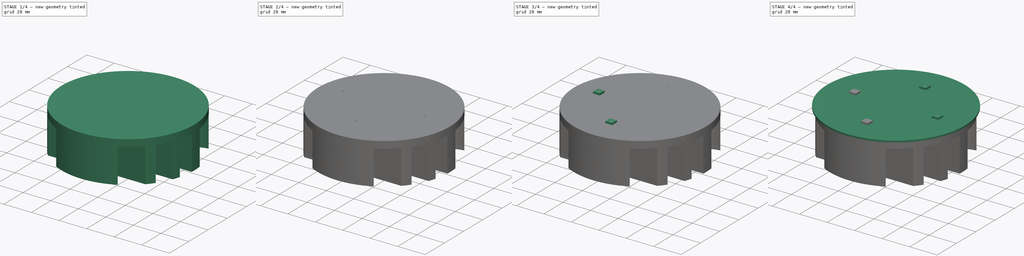
[diagram: build sequence overview — one tinted view per stage of 4, left to right]
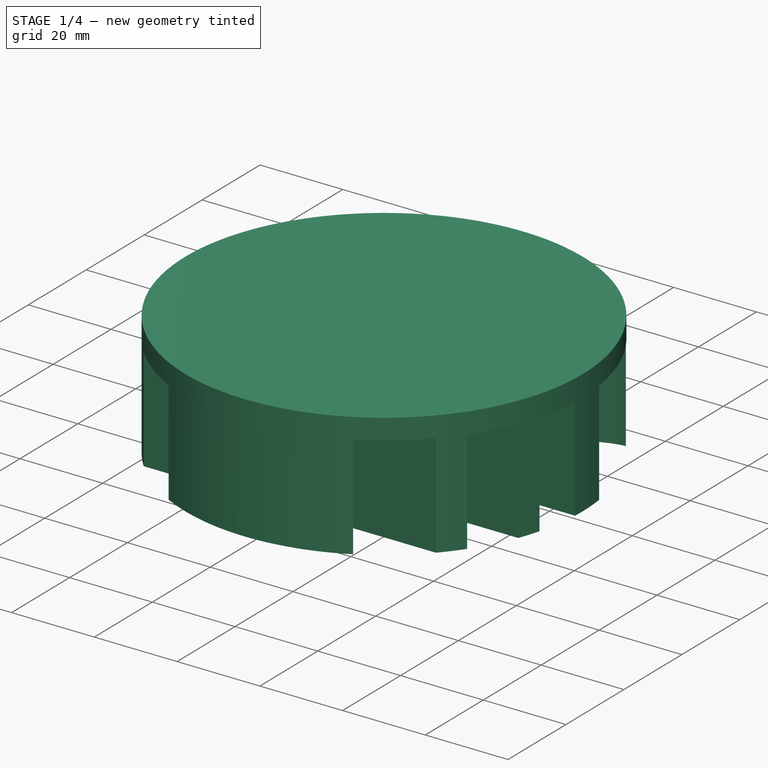
[diagram: stage 1 of 4 — iso view after this stage's code; geometry added in this stage tinted green]
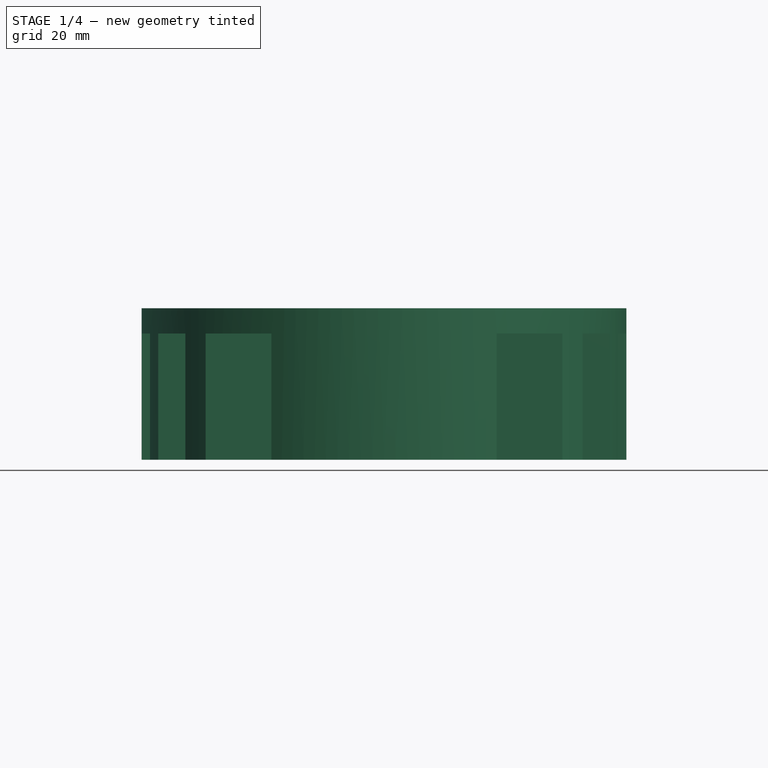
[diagram: stage 1 of 4 — front view after this stage's code; geometry added in this stage tinted green]
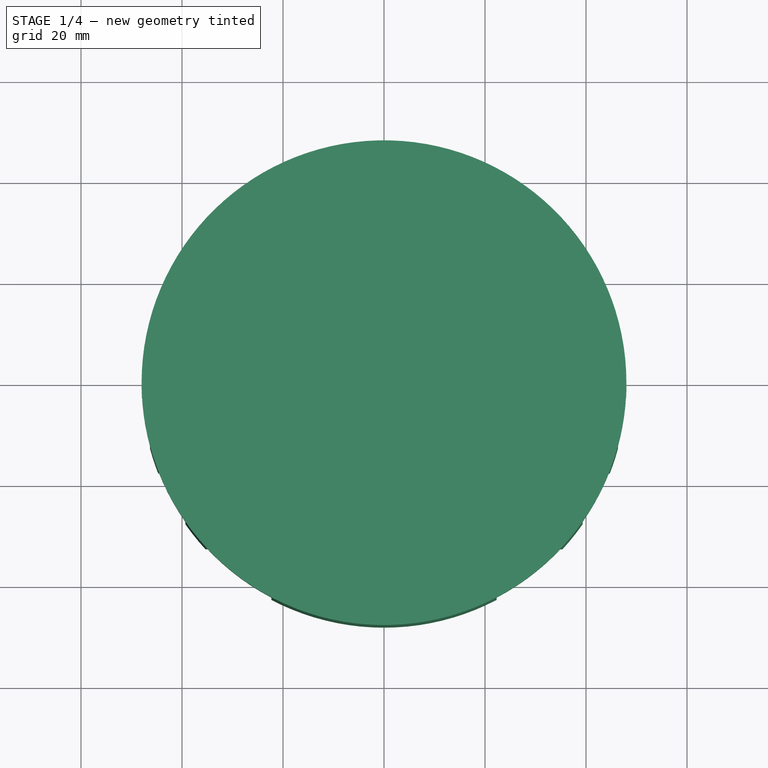
[diagram: stage 1 of 4 — top view after this stage's code; geometry added in this stage tinted green]
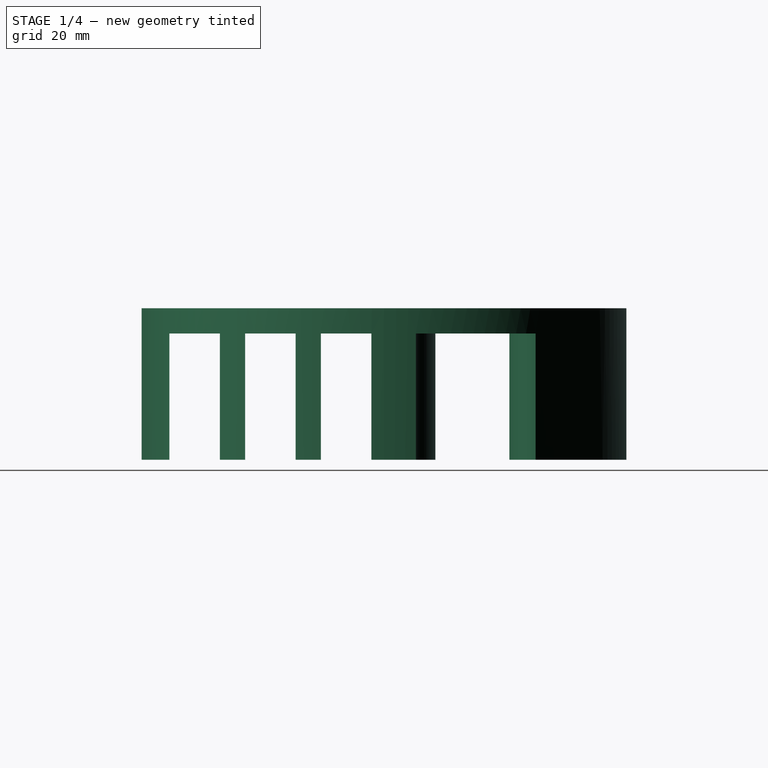
[diagram: stage 1 of 4 — right view after this stage's code; geometry added in this stage tinted green]
FCSTD DOCUMENT  (FreeCAD 0.16R6712 (Git))
Label: LED
License: All rights reserved
LicenseURL: http://en.wikipedia.org/wiki/All_rights_reserved
objects: Part::Box×8, Part::Cylinder×2, Sketcher::SketchObject×2, Part::Extrusion×1, PartDesign::Pocket×1
note: 15 computed .brp shape members not serialized (recipe doc carries the construction recipe); baked Part::Feature solids carry a one-line shape summary decoded from their .brp

FEATURE [Part::Cylinder] Cylinder001  label="TIM"
  Angle = 360
  Height = 0.03
  Placement = pos=(0,0,-0.03) rot=(0,0,1;0rad)
  Radius = 48
FEATURE [Sketcher::SketchObject] Sketch
  Placement = pos=(0,0,-0.03) rot=(1,0,0;3.14159rad)
  Support = -> Cylinder001 [Face3]
  sketch-geometry (1):
    g0: Circle CenterX=0 CenterY=0 CenterZ=0 NormalX=0 NormalY=0 NormalZ=1 Radius=48
  constraints (3):
    c: PointOnObject(g0,g-2)
    c: PointOnObject(g0,g-1)
    c: Radius(g0) = 48
FEATURE [Part::Extrusion] Extrude
  Base = -> Sketch
  Dir = (0,0,-30)
  Solid = true
FEATURE [Sketcher::SketchObject] Sketch001
  Placement = pos=(0,0,-30.03) rot=(1,0,0;3.14159rad)
  Support = -> Extrude [Face3]
  sketch-geometry (24):
    g0: LineSegment StartX=-50 StartY=42.5 StartZ=0 EndX=50 EndY=42.5 EndZ=0
    g1: LineSegment StartX=50 StartY=42.5 StartZ=0 EndX=50 EndY=32.5 EndZ=0
    g2: LineSegment StartX=50 StartY=32.5 StartZ=0 EndX=-50 EndY=32.5 EndZ=0
    g3: LineSegment StartX=-50 StartY=32.5 StartZ=0 EndX=-50 EndY=42.5 EndZ=0
    g4: LineSegment StartX=-50 StartY=27.5 StartZ=0 EndX=50 EndY=27.5 EndZ=0
    g5: LineSegment StartX=50 StartY=27.5 StartZ=0 EndX=50 EndY=17.5 EndZ=0
    g6: LineSegment StartX=50 StartY=17.5 StartZ=0 EndX=-50 EndY=17.5 EndZ=0
    g7: LineSegment StartX=-50 StartY=17.5 StartZ=0 EndX=-50 EndY=27.5 EndZ=0
    g8: LineSegment StartX=-50 StartY=12.5 StartZ=0 EndX=50 EndY=12.5 EndZ=0
    g9: LineSegment StartX=50 StartY=12.5 StartZ=0 EndX=50 EndY=2.5 EndZ=0
    g10: LineSegment StartX=50 StartY=2.5 StartZ=0 EndX=-50 EndY=2.5 EndZ=0
    g11: LineSegment StartX=-50 StartY=2.5 StartZ=0 EndX=-50 EndY=12.5 EndZ=0
    g12: ArcOfCircle CenterX=-40 CenterY=-24.8205 CenterZ=0 NormalX=0 NormalY=0 NormalZ=1 Radius=20 StartAngle=1.0472 EndAngle=2.09439
    g13: ArcOfCircle CenterX=-20 CenterY=9.82049 CenterZ=0 NormalX=0 NormalY=0 NormalZ=1 Radius=20 StartAngle=4.18879 EndAngle=5.23599
    g14: ArcOfCircle CenterX=0 CenterY=-24.8205 CenterZ=0 NormalX=0 NormalY=0 NormalZ=1 Radius=20 StartAngle=1.0472 EndAngle=2.09439
    g15: ArcOfCircle CenterX=20 CenterY=9.82049 CenterZ=0 NormalX=0 NormalY=0 NormalZ=1 Radius=20 StartAngle=4.18879 EndAngle=5.23599
    g16: ArcOfCircle CenterX=40 CenterY=-24.8205 CenterZ=0 NormalX=0 NormalY=0 NormalZ=1 Radius=20 StartAngle=1.0472 EndAngle=2.09439
    g17: ArcOfCircle CenterX=-40 CenterY=-10.1795 CenterZ=0 NormalX=0 NormalY=0 NormalZ=1 Radius=20 StartAngle=4.18879 EndAngle=5.23599
    g18: ArcOfCircle CenterX=-20 CenterY=-44.8205 CenterZ=0 NormalX=0 NormalY=0 NormalZ=1 Radius=20 StartAngle=1.0472 EndAngle=2.0944
    g19: ArcOfCircle CenterX=0 CenterY=-10.1795 CenterZ=0 NormalX=0 NormalY=0 NormalZ=1 Radius=20 StartAngle=4.18879 EndAngle=5.23599
    g20: ArcOfCircle CenterX=20 CenterY=-44.8205 CenterZ=0 NormalX=0 NormalY=0 NormalZ=1 Radius=20 StartAngle=1.0472 EndAngle=2.0944
    g21: ArcOfCircle CenterX=40 CenterY=-10.1795 CenterZ=0 NormalX=0 NormalY=0 NormalZ=1 Radius=20 StartAngle=4.18879 EndAngle=5.23599
    g22: LineSegment StartX=-50 StartY=-7.5 StartZ=0 EndX=-50 EndY=-27.5 EndZ=0
    g23: LineSegment StartX=50 StartY=-7.5 StartZ=0 EndX=50 EndY=-27.5 EndZ=0
  constraints (82):
    c: Coincident(g0,g1)
    c: Coincident(g1,g2)
    c: Coincident(g2,g3)
    c: Coincident(g3,g0)
    c: Horizontal(g0)
    c: Horizontal(g2)
    c: Vertical(g1)
    c: Vertical(g3)
    c: Coincident(g4,g5)
    c: Coincident(g5,g6)
    c: Coincident(g6,g7)
    c: Coincident(g7,g4)
    c: Horizontal(g4)
    c: Horizontal(g6)
    c: Vertical(g5)
    c: Coincident(g8,g9)
    c: Coincident(g9,g10)
    c: Coincident(g10,g11)
    c: Coincident(g11,g8)
    c: Horizontal(g8)
    c: Horizontal(g10)
    c: Vertical(g9)
    c: Vertical(g11)
    c: PointOnObject(g6,g11)
    c: PointOnObject(g2,g7)
    c: PointOnObject(g5,g9)
    c: PointOnObject(g1,g5)
    c: Equal(g3,g7)
    c: Equal(g7,g11)
    c: Equal(g8,g4)
    c: Equal(g4,g0)
    c: DistanceY(g11,g11) = 10
    c: DistanceY(g-1,g10) = 2.5
    c: DistanceY(g8,g6) = 5
    c: DistanceY(g4,g2) = 5
    c: DistanceX(g10,g-1) = 50
    c: DistanceX(g10,g10) = 100
    c: Coincident(g13,g12)
    c: Coincident(g14,g13)
    c: Coincident(g15,g14)
    c: Coincident(g16,g15)
    c: Coincident(g18,g17)
    c: Coincident(g19,g18)
    c: Coincident(g20,g19)
    c: Coincident(g21,g20)
    c: Tangent(g13,g12)
    c: Tangent(g13,g14)
    c: Tangent(g14,g15)
    c: Tangent(g16,g15)
    c: Tangent(g17,g18)
    c: Tangent(g18,g19)
    c: Tangent(g20,g19)
    c: Tangent(g20,g21)
    c: Coincident(g22,g12)
    c: Coincident(g22,g17)
    c: Coincident(g23,g16)
    c: Vertical(g22)
    c: Vertical(g23)
    c: Coincident(g21,g23)
    c: Equal(g12, g13-g16) x4
    c: Equal(g12,g21)
    c: Equal(g12,g20)
    c: Equal(g12,g19)
    c: Equal(g12,g18)
    c: Equal(g12,g17)
    c: PointOnObject(g12,g11)
    c: PointOnObject(g16,g9)
    c: PointOnObject(g14,g-2)
    c: PointOnObject(g19,g-2)
    c: Radius(g12) = 20
    c: DistanceY(g16,g12) = 0
    c: DistanceY(g12,g12) = 0
    c: DistanceY(g12,g13) = 0
    c: DistanceY(g12,g14) = 0
    c: DistanceY(g12,g15) = 0
    c: DistanceY(g17,g17) = 0
    c: DistanceY(g18,g17) = 0
    c: DistanceY(g19,g17) = 0
    c: DistanceY(g17,g20) = 0
    c: DistanceY(g17,g21) = 0
    c: DistanceY(g22,g22) = 20
    c: DistanceY(g12,g-1) = 7.5
FEATURE [PartDesign::Pocket] Pocket  label="HEATSINK"
  Length = 25
  Sketch = -> Sketch001
  Type = 0
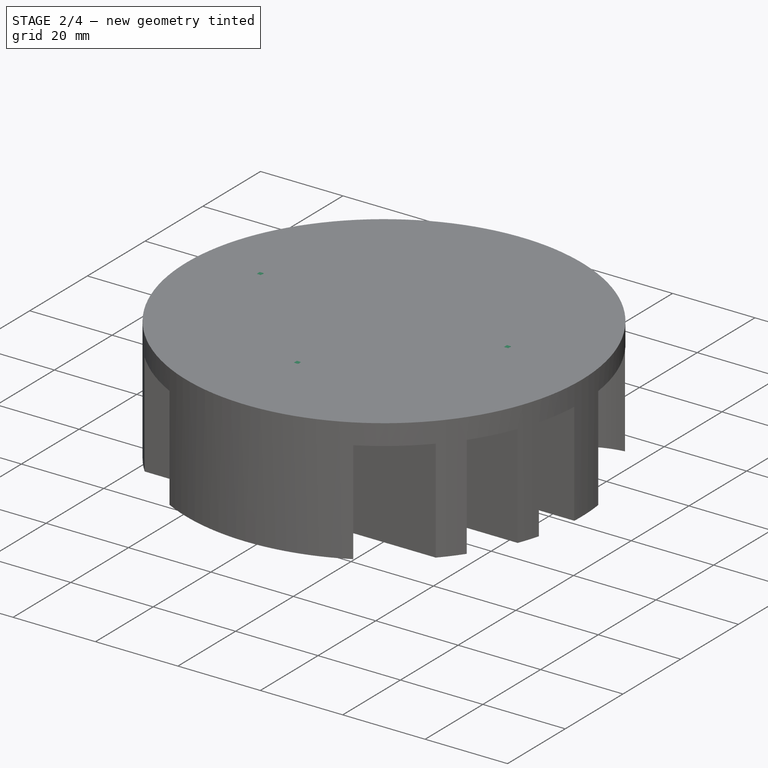
[diagram: stage 2 of 4 — iso view after this stage's code; geometry added in this stage tinted green]
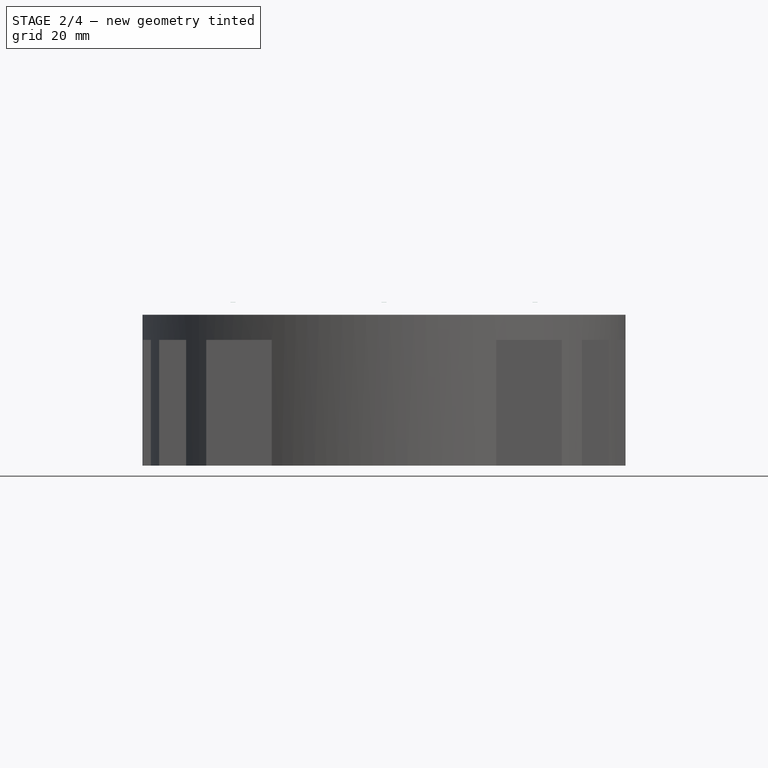
[diagram: stage 2 of 4 — front view after this stage's code; geometry added in this stage tinted green]
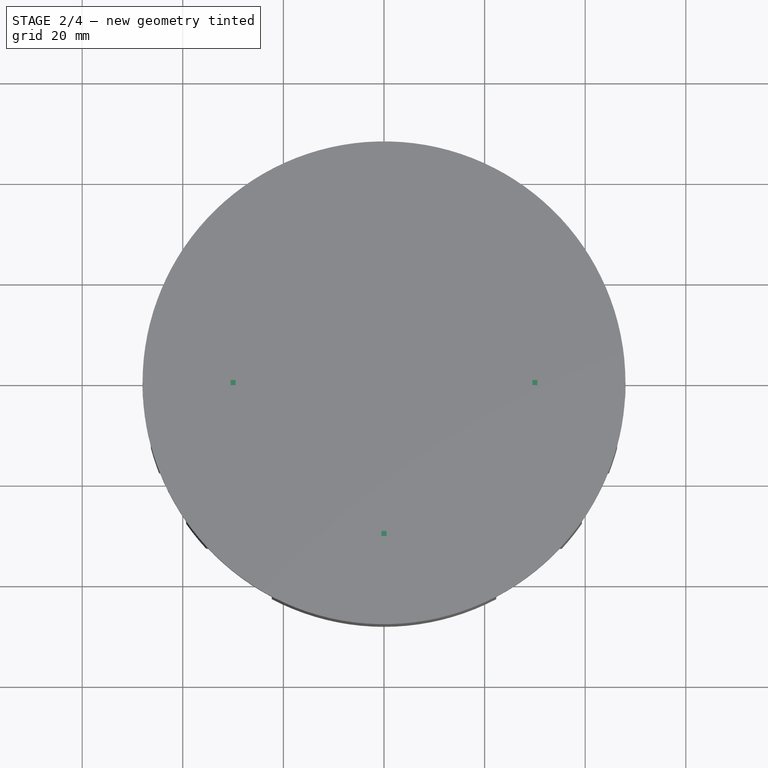
[diagram: stage 2 of 4 — top view after this stage's code; geometry added in this stage tinted green]
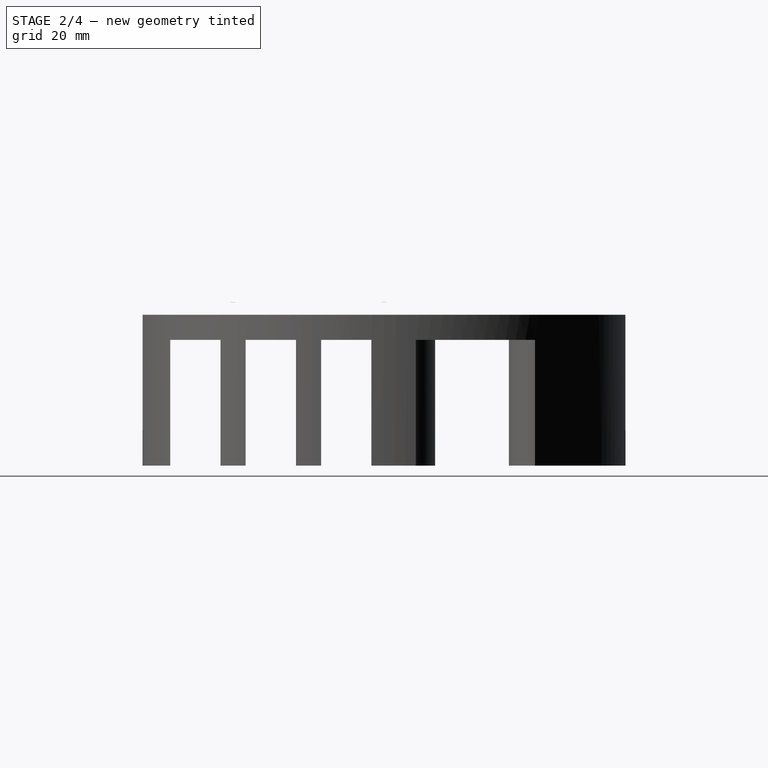
[diagram: stage 2 of 4 — right view after this stage's code; geometry added in this stage tinted green]
FEATURE [Part::Box] Box005  label="LED02"
  Height = 0.015
  Length = 1
  Placement = pos=(29.5,-0.5,2.4) rot=(0,0,1;0rad)
  Width = 1
FEATURE [Part::Box] Box006  label="LED03"
  Height = 0.015
  Length = 1
  Placement = pos=(-0.5,-30.5,2.4) rot=(0,0,1;0rad)
  Width = 1
FEATURE [Part::Box] Box007  label="LED04"
  Height = 0.015
  Length = 1
  Placement = pos=(-30.5,-0.5,2.4) rot=(0,0,1;0rad)
  Width = 1
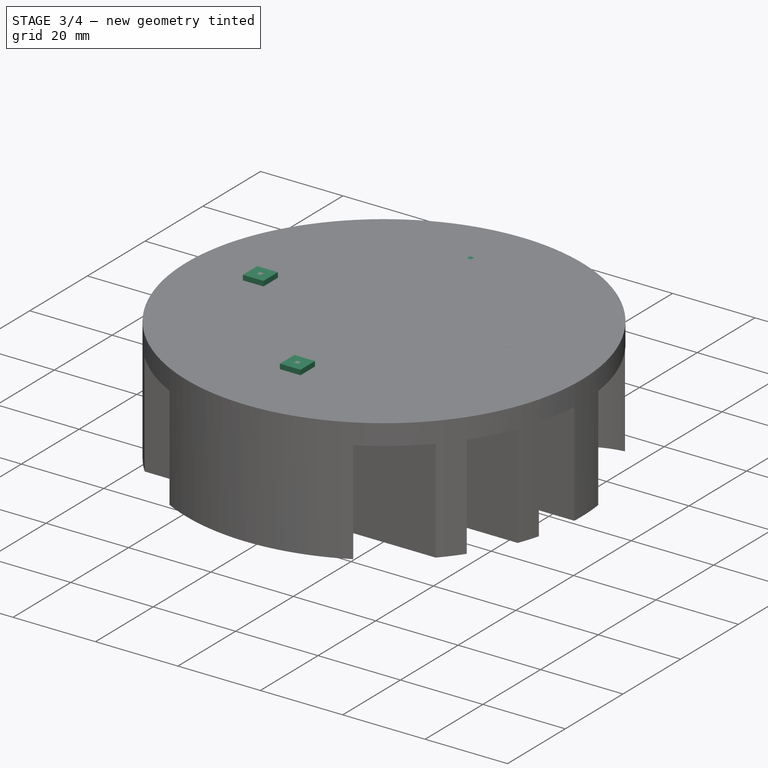
[diagram: stage 3 of 4 — iso view after this stage's code; geometry added in this stage tinted green]
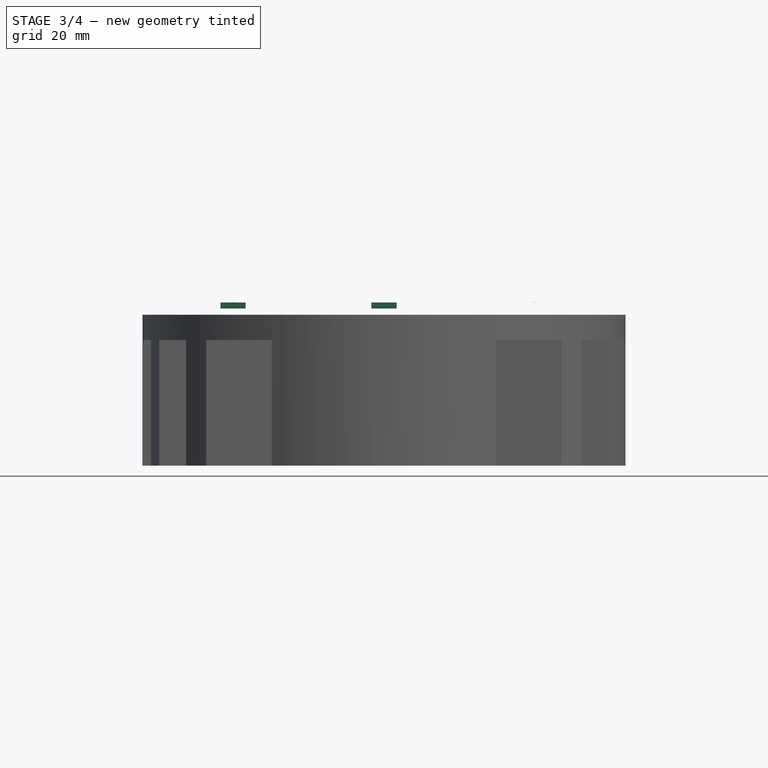
[diagram: stage 3 of 4 — front view after this stage's code; geometry added in this stage tinted green]
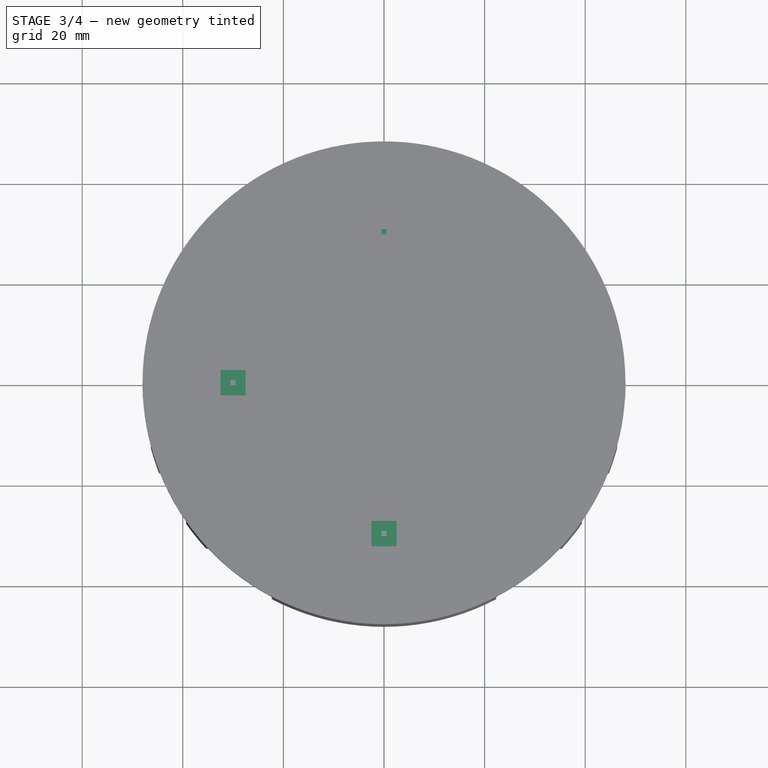
[diagram: stage 3 of 4 — top view after this stage's code; geometry added in this stage tinted green]
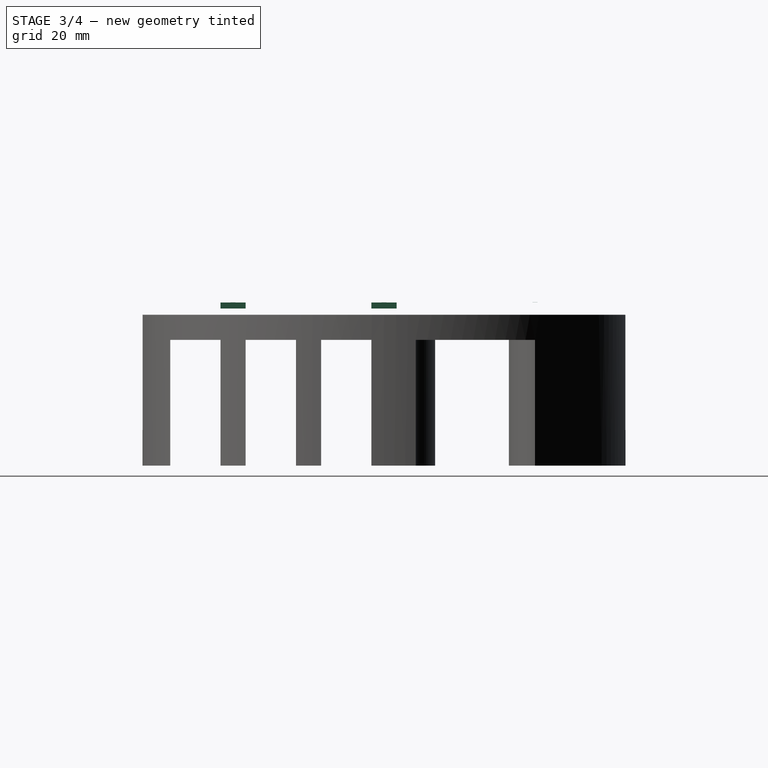
[diagram: stage 3 of 4 — right view after this stage's code; geometry added in this stage tinted green]
FEATURE [Part::Box] Box002  label="SLUG03"
  Height = 1.2
  Length = 5
  Placement = pos=(-2.5,-32.5,1.2) rot=(0,0,1;0rad)
  Width = 5
FEATURE [Part::Box] Box003  label="SLUG04"
  Height = 1.2
  Length = 5
  Placement = pos=(-32.5,-2.5,1.2) rot=(0,0,1;0rad)
  Width = 5
FEATURE [Part::Box] Box004  label="LED01"
  Height = 0.015
  Length = 1
  Placement = pos=(-0.5,29.5,2.4) rot=(0,0,1;0rad)
  Width = 1
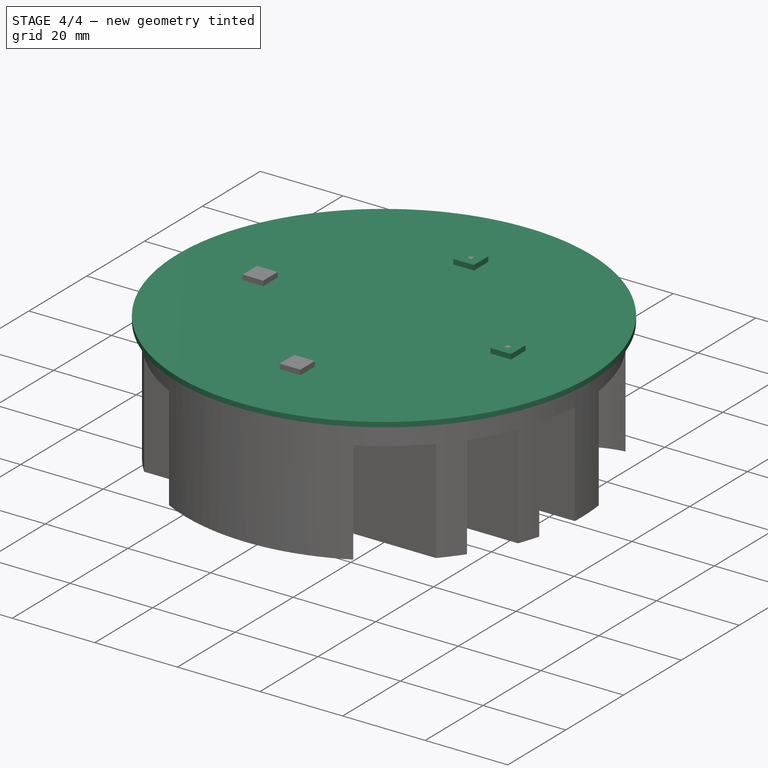
[diagram: stage 4 of 4 — iso view after this stage's code; geometry added in this stage tinted green]
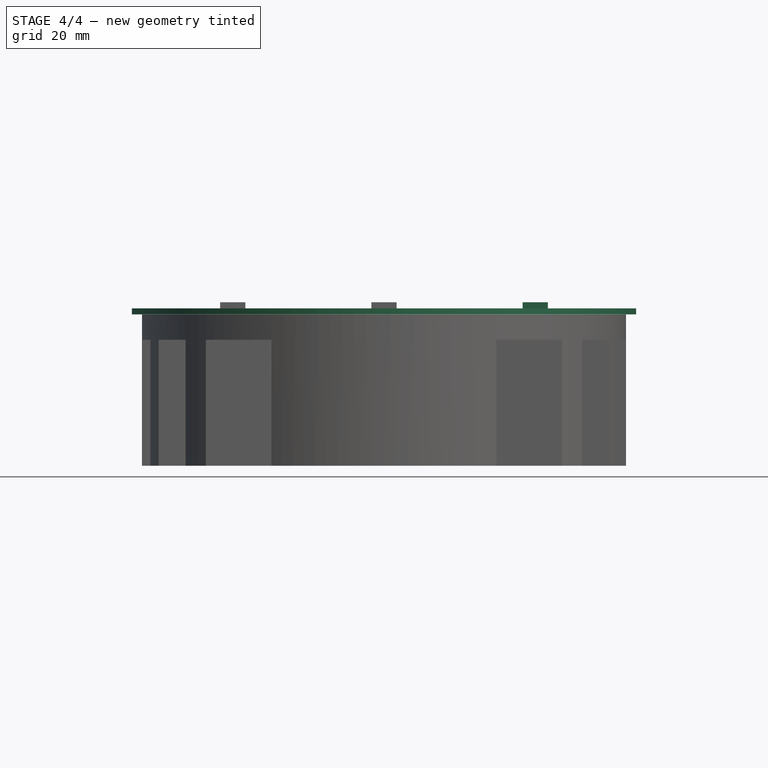
[diagram: stage 4 of 4 — front view after this stage's code; geometry added in this stage tinted green]
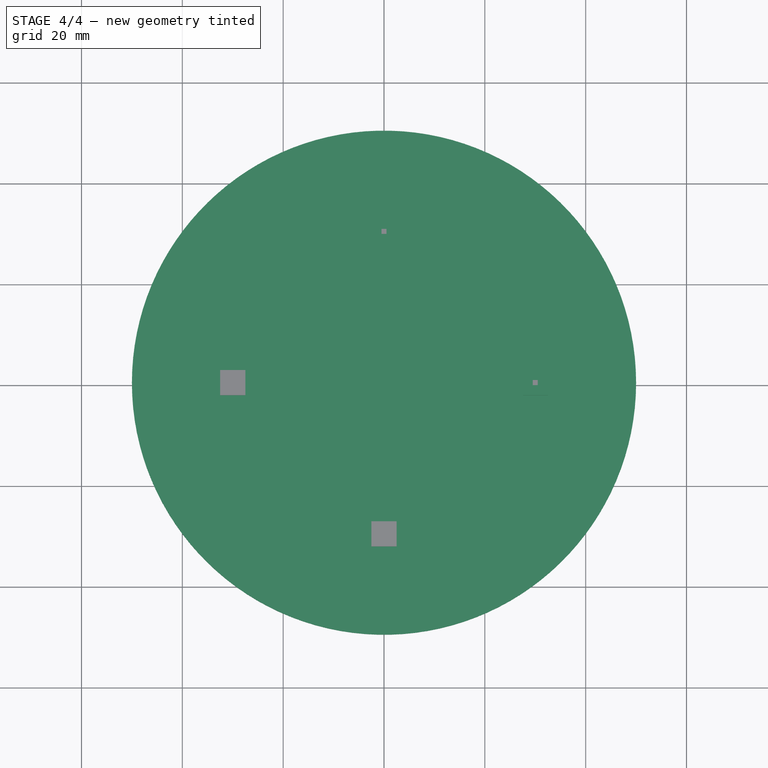
[diagram: stage 4 of 4 — top view after this stage's code; geometry added in this stage tinted green]
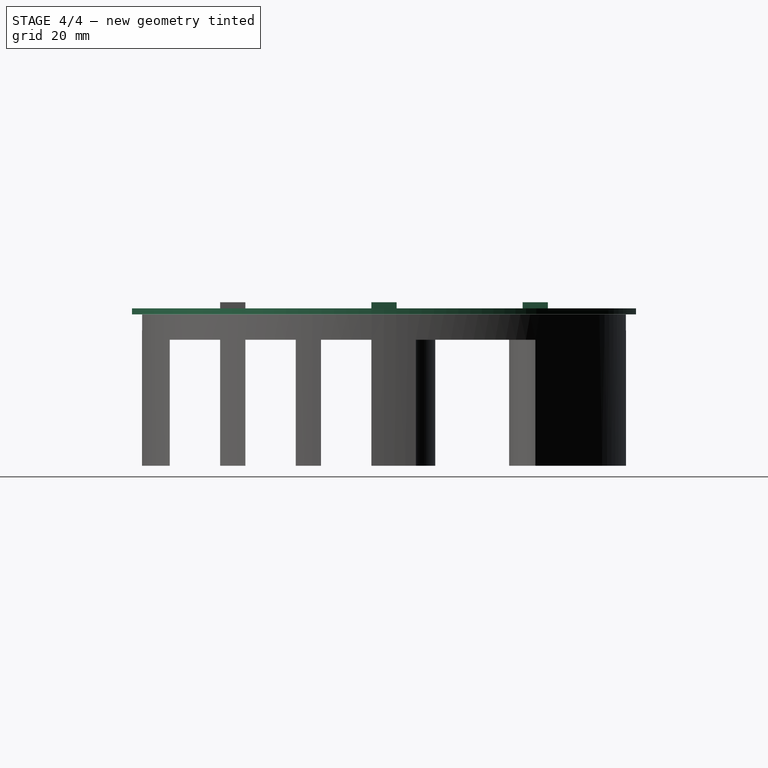
[diagram: stage 4 of 4 — right view after this stage's code; geometry added in this stage tinted green]
FEATURE [Part::Cylinder] Cylinder  label="PCB"
  Angle = 360
  Height = 1.2
  Radius = 50
FEATURE [Part::Box] Box  label="SLUG01"
  Height = 1.2
  Length = 5
  Placement = pos=(-2.5,27.5,1.2) rot=(0,0,1;0rad)
  Width = 5
FEATURE [Part::Box] Box001  label="SLUG02"
  Height = 1.2
  Length = 5
  Placement = pos=(27.5,-2.5,1.2) rot=(0,0,1;0rad)
  Width = 5
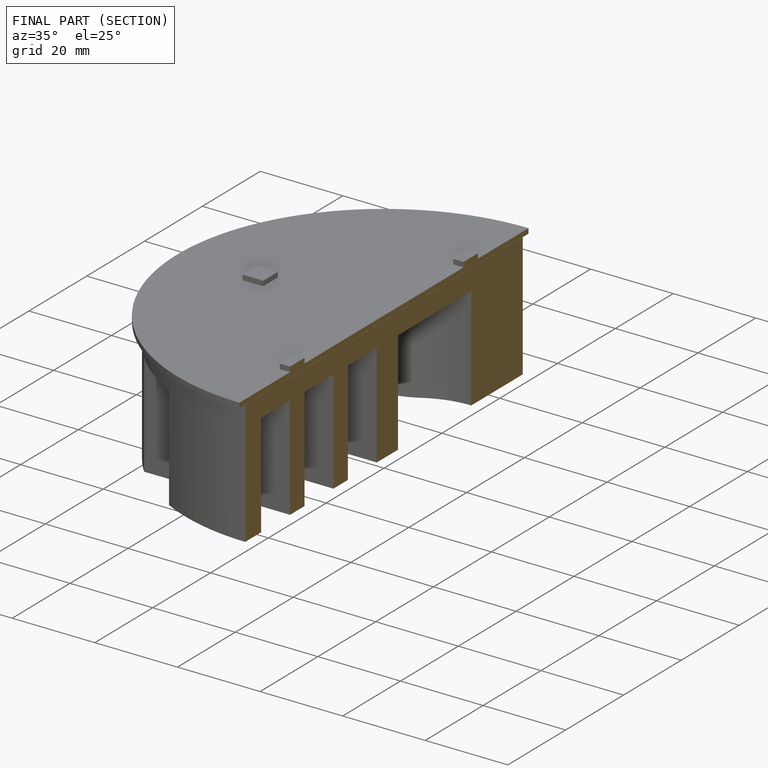
[diagram: finished part — half-section view (interior)]
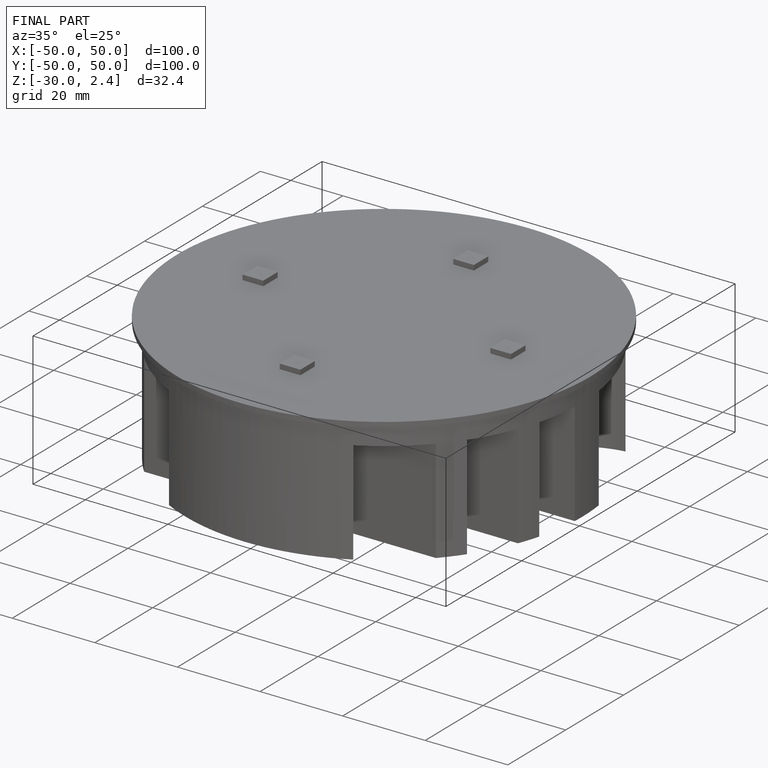
[diagram: finished part — iso view with bounding-box wireframe]
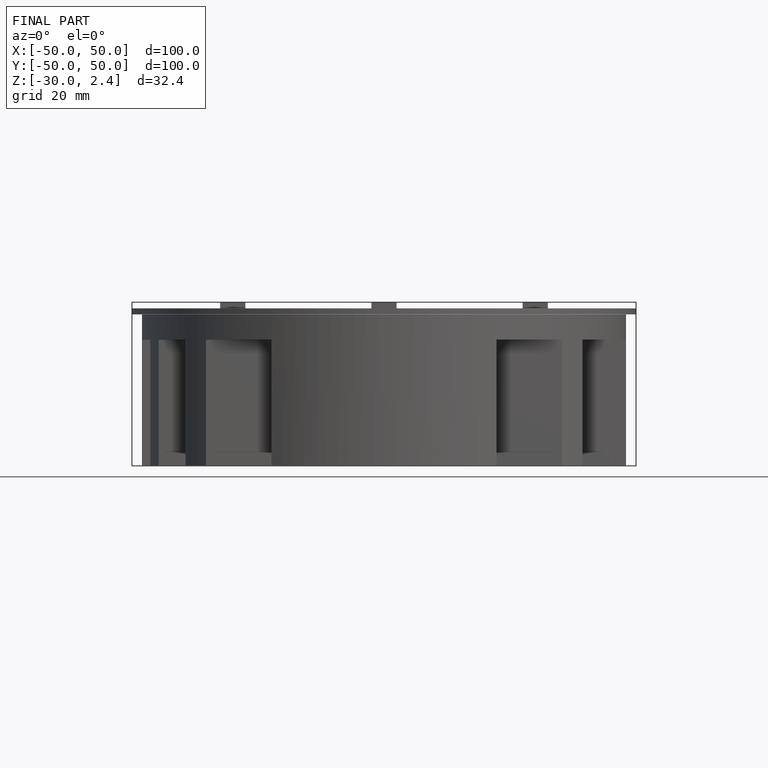
[diagram: finished part — front view with bounding-box wireframe]
